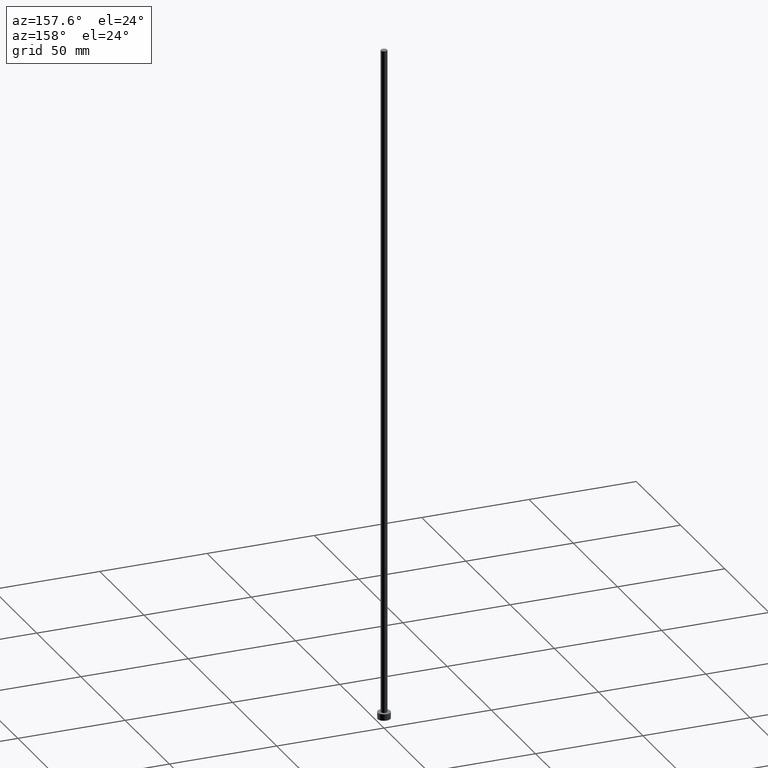
[diagram: clean part render]
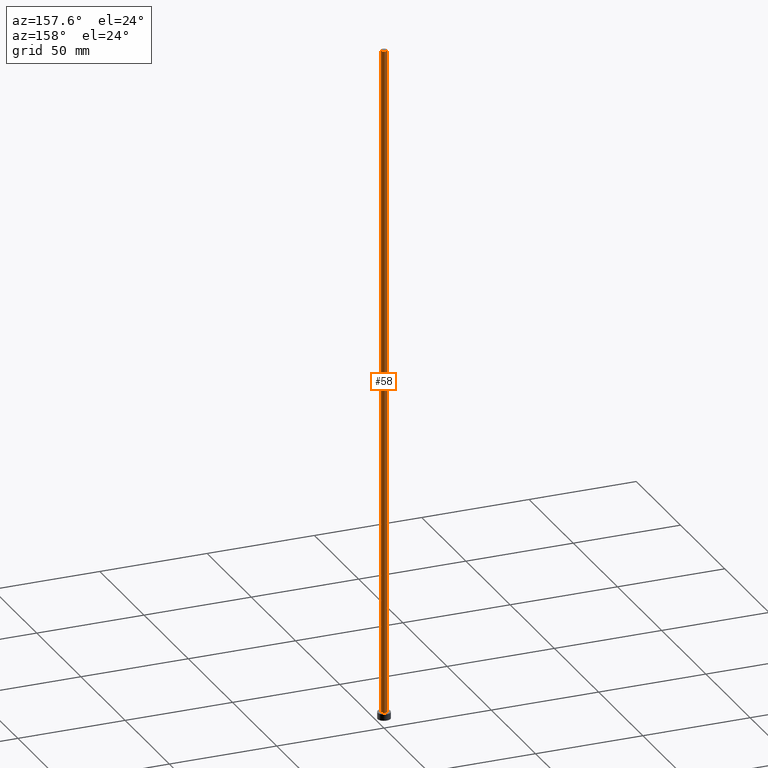
[diagram: same view with one face highlighted and labeled with its STEP entity id]
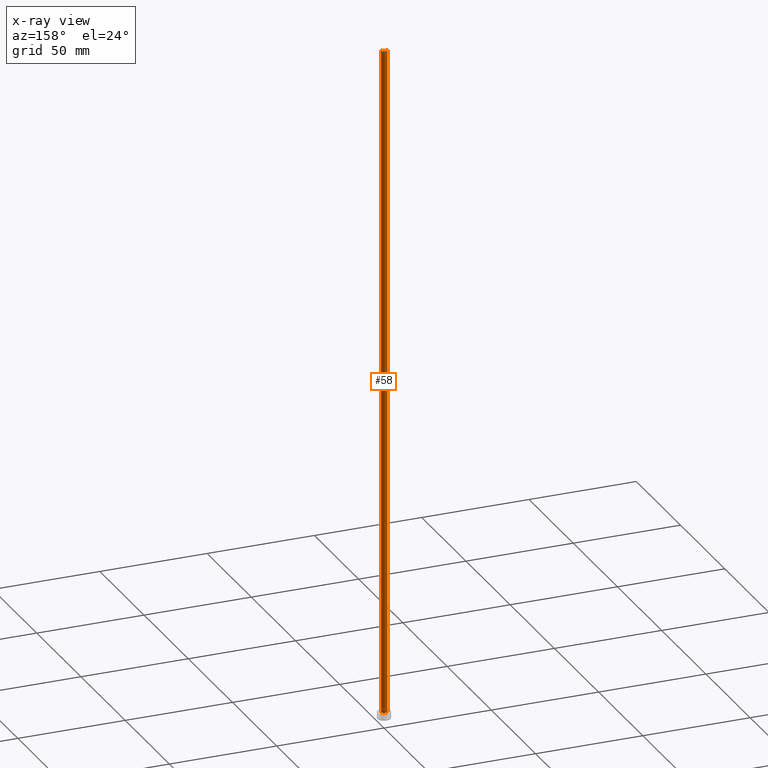
[diagram: x-ray of the same camera — body ghosted, the highlighted face saturated]
A machine part, auxiliary view. The second image highlights one B-rep face of the part: STEP entity #58.
The next image is the same camera in x-ray: the body ghosted, the highlighted face saturated — about 0% of this face is hidden behind the body in this view.
In plain terms, the highlighted cylindrical surface (edge-blend (fillet) strip) has radius 1.5 mm, axis along (-0, -0, -1).
Its self-contained STEP definition (entity closure, byte-faithful):
#6 = CARTESIAN_POINT ( 'NONE',  ( -1.500000000000000222, 0.000000000000000000, 3.000000000000000000 ) ) ;
#14 = LINE ( 'NONE', #206, #217 ) ;
#21 = CARTESIAN_POINT ( 'NONE',  ( -1.500000000000000222, 0.000000000000000000, 315.0000000000000000 ) ) ;
#22 = AXIS2_PLACEMENT_3D ( 'NONE', #50, #223, #103 ) ;
#27 = VERTEX_POINT ( 'NONE', #201 ) ;
#33 = DIRECTION ( 'NONE',  ( 1.000000000000000000, 0.000000000000000000, 0.000000000000000000 ) ) ;
#34 = FACE_OUTER_BOUND ( 'NONE', #71, .T. ) ;
#41 = CIRCLE ( 'NONE', #169, 1.500000000000000222 ) ;
#45 = VERTEX_POINT ( 'NONE', #6 ) ;
#50 = CARTESIAN_POINT ( 'NONE',  ( 0.000000000000000000, 0.000000000000000000, 3.000000000000000000 ) ) ;
#54 = DIRECTION ( 'NONE',  ( -1.000000000000000000, 0.000000000000000000, 0.000000000000000000 ) ) ;
#58 = ADVANCED_FACE ( 'NONE', ( #34 ), #140, .T. ) ;
#62 = EDGE_CURVE ( 'NONE', #27, #209, #41, .T. ) ;
#68 = CARTESIAN_POINT ( 'NONE',  ( -1.500000000000000222, 0.000000000000000000, 315.0000000000000000 ) ) ;
#71 = EDGE_LOOP ( 'NONE', ( #145, #172, #117, #126 ) ) ;
#78 = AXIS2_PLACEMENT_3D ( 'NONE', #198, #178, #54 ) ;
#82 = EDGE_CURVE ( 'NONE', #208, #45, #92, .T. ) ;
#88 = DIRECTION ( 'NONE',  ( -0.000000000000000000, -0.000000000000000000, -1.000000000000000000 ) ) ;
#92 = CIRCLE ( 'NONE', #22, 1.500000000000000222 ) ;
#103 = DIRECTION ( 'NONE',  ( 1.000000000000000000, 0.000000000000000000, 0.000000000000000000 ) ) ;
#104 = EDGE_CURVE ( 'NONE', #209, #45, #120, .T. ) ;
#117 = ORIENTED_EDGE ( 'NONE', *, *, #82, .T. ) ;
#120 = LINE ( 'NONE', #68, #176 ) ;
#123 = CARTESIAN_POINT ( 'NONE',  ( 0.000000000000000000, 0.000000000000000000, 315.0000000000000000 ) ) ;
#126 = ORIENTED_EDGE ( 'NONE', *, *, #104, .F. ) ;
#129 = CARTESIAN_POINT ( 'NONE',  ( 1.500000000000000222, 1.836970198721030181E-16, 3.000000000000000000 ) ) ;
#140 = CYLINDRICAL_SURFACE ( 'NONE', #78, 1.500000000000000222 ) ;
#145 = ORIENTED_EDGE ( 'NONE', *, *, #62, .F. ) ;
#169 = AXIS2_PLACEMENT_3D ( 'NONE', #123, #203, #33 ) ;
#172 = ORIENTED_EDGE ( 'NONE', *, *, #202, .T. ) ;
#176 = VECTOR ( 'NONE', #180, 1000.000000000000000 ) ;
#178 = DIRECTION ( 'NONE',  ( -0.000000000000000000, -0.000000000000000000, -1.000000000000000000 ) ) ;
#180 = DIRECTION ( 'NONE',  ( -0.000000000000000000, -0.000000000000000000, -1.000000000000000000 ) ) ;
#198 = CARTESIAN_POINT ( 'NONE',  ( 0.000000000000000000, 0.000000000000000000, 315.0000000000000000 ) ) ;
#201 = CARTESIAN_POINT ( 'NONE',  ( 1.500000000000000222, 1.836970198721030181E-16, 315.0000000000000000 ) ) ;
#202 = EDGE_CURVE ( 'NONE', #27, #208, #14, .T. ) ;
#203 = DIRECTION ( 'NONE',  ( 0.000000000000000000, 0.000000000000000000, 1.000000000000000000 ) ) ;
#206 = CARTESIAN_POINT ( 'NONE',  ( 1.500000000000000222, 1.836970198721030181E-16, 315.0000000000000000 ) ) ;
#208 = VERTEX_POINT ( 'NONE', #129 ) ;
#209 = VERTEX_POINT ( 'NONE', #21 ) ;
#217 = VECTOR ( 'NONE', #88, 1000.000000000000000 ) ;
#223 = DIRECTION ( 'NONE',  ( 0.000000000000000000, 0.000000000000000000, 1.000000000000000000 ) ) ;